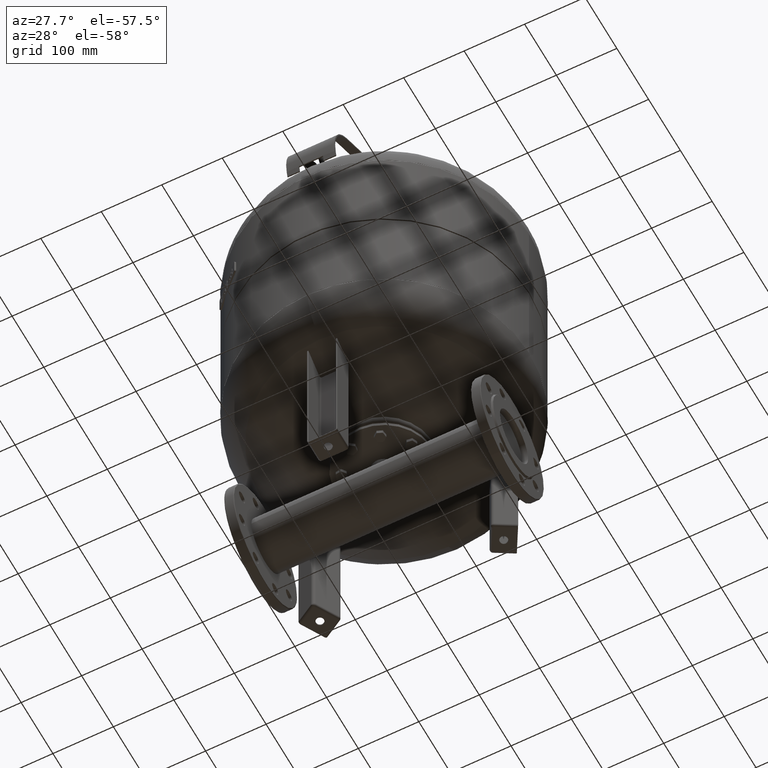
[diagram: clean part render]
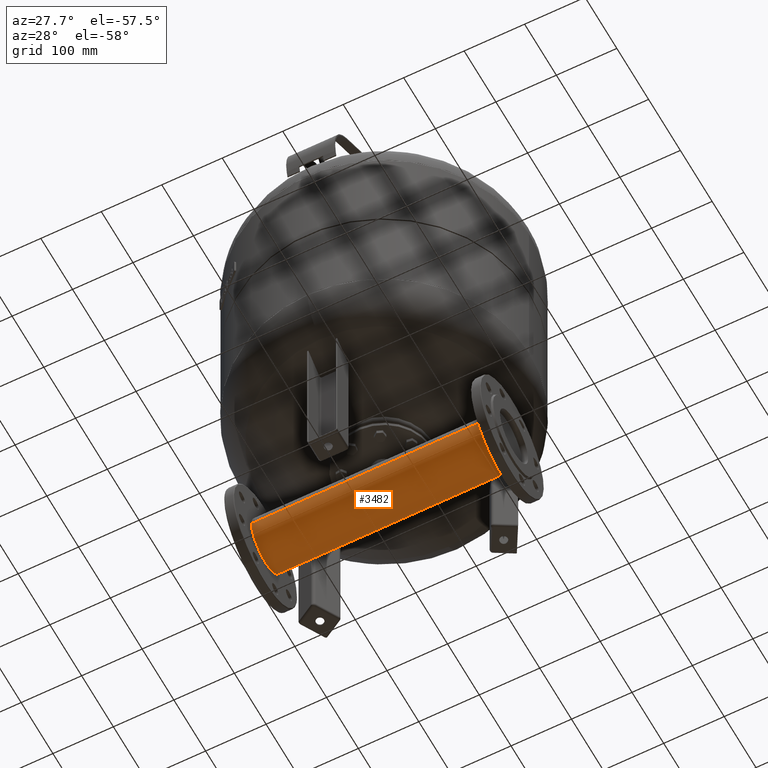
[diagram: same view with one face highlighted and labeled with its STEP entity id]
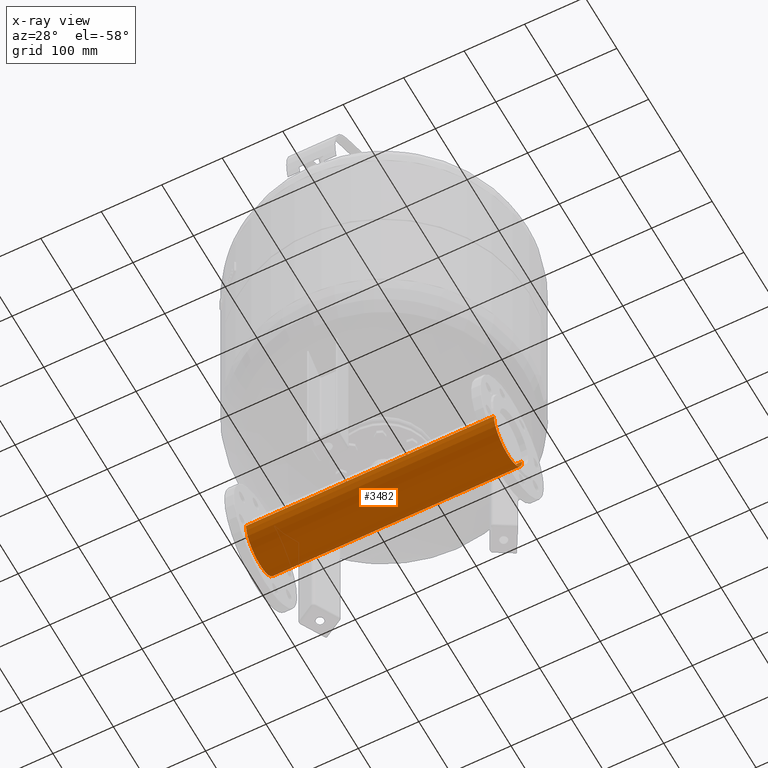
[diagram: x-ray of the same camera — body ghosted, the highlighted face saturated]
A machine part, auxiliary view. The second image highlights one B-rep face of the part: STEP entity #3482.
The next image is the same camera in x-ray: the body ghosted, the highlighted face saturated — about 0% of this face is hidden behind the body in this view.
In plain terms, the highlighted cylindrical surface (edge-blend (fillet) strip) has radius 44.45 mm, axis along (-1, 0, 0).
Its self-contained STEP definition (entity closure, byte-faithful):
#3441=CARTESIAN_POINT('',(-2.842171E-014,0.0,115.000000000000010));
#3442=DIRECTION('',(-1.0,0.0,0.0));
#3443=DIRECTION('',(0.0,-1.0,0.0));
#3444=AXIS2_PLACEMENT_3D('',#3441,#3442,#3443);
#3445=CYLINDRICAL_SURFACE('',#3444,44.450000000000003);
#3446=CARTESIAN_POINT('',(-205.000000000000030,-44.450000000000003,115.000000000000010));
#3447=VERTEX_POINT('',#3446);
#3448=CARTESIAN_POINT('',(204.999999999999970,-44.450000000000003,115.000000000000010));
#3449=VERTEX_POINT('',#3448);
#3450=CARTESIAN_POINT('',(-205.000000000000030,-44.450000000000003,115.000000000000010));
#3451=DIRECTION('',(1.0,0.0,0.0));
#3452=VECTOR('',#3451,410.0);
#3453=LINE('',#3450,#3452);
#3454=EDGE_CURVE('',#3447,#3449,#3453,.T.);
#3455=ORIENTED_EDGE('',*,*,#3454,.F.);
#3456=CARTESIAN_POINT('',(-205.000000000000030,44.450000000000003,115.000000000000010));
#3457=VERTEX_POINT('',#3456);
#3458=CARTESIAN_POINT('',(-205.000000000000030,0.0,115.000000000000010));
#3459=DIRECTION('',(-1.0,0.0,0.0));
#3460=DIRECTION('',(0.0,-1.0,0.0));
#3461=AXIS2_PLACEMENT_3D('',#3458,#3459,#3460);
#3462=CIRCLE('',#3461,44.450000000000003);
#3463=EDGE_CURVE('',#3457,#3447,#3462,.T.);
#3464=ORIENTED_EDGE('',*,*,#3463,.F.);
#3465=CARTESIAN_POINT('',(204.999999999999970,44.450000000000003,115.000000000000010));
#3466=VERTEX_POINT('',#3465);
#3467=CARTESIAN_POINT('',(-205.000000000000030,44.450000000000003,115.000000000000010));
#3468=DIRECTION('',(1.0,0.0,0.0));
#3469=VECTOR('',#3468,410.0);
#3470=LINE('',#3467,#3469);
#3471=EDGE_CURVE('',#3457,#3466,#3470,.T.);
#3472=ORIENTED_EDGE('',*,*,#3471,.T.);
#3473=CARTESIAN_POINT('',(204.999999999999970,0.0,115.000000000000010));
#3474=DIRECTION('',(1.0,0.0,0.0));
#3475=DIRECTION('',(0.0,-1.0,0.0));
#3476=AXIS2_PLACEMENT_3D('',#3473,#3474,#3475);
#3477=CIRCLE('',#3476,44.450000000000003);
#3478=EDGE_CURVE('',#3449,#3466,#3477,.T.);
#3479=ORIENTED_EDGE('',*,*,#3478,.F.);
#3480=EDGE_LOOP('',(#3455,#3464,#3472,#3479));
#3481=FACE_OUTER_BOUND('',#3480,.T.);
#3482=ADVANCED_FACE('',(#3481),#3445,.T.);